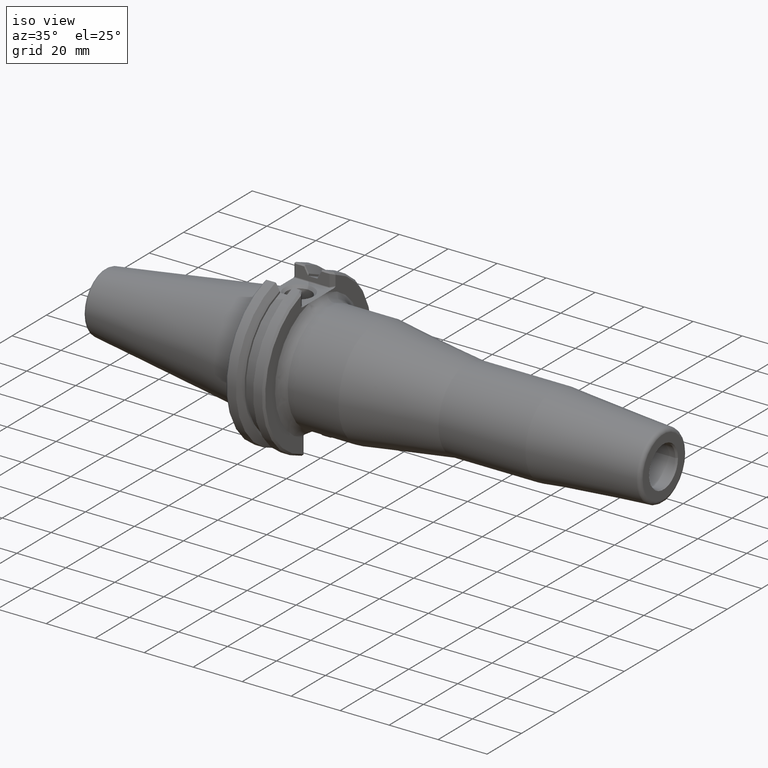
[diagram: clean part render]
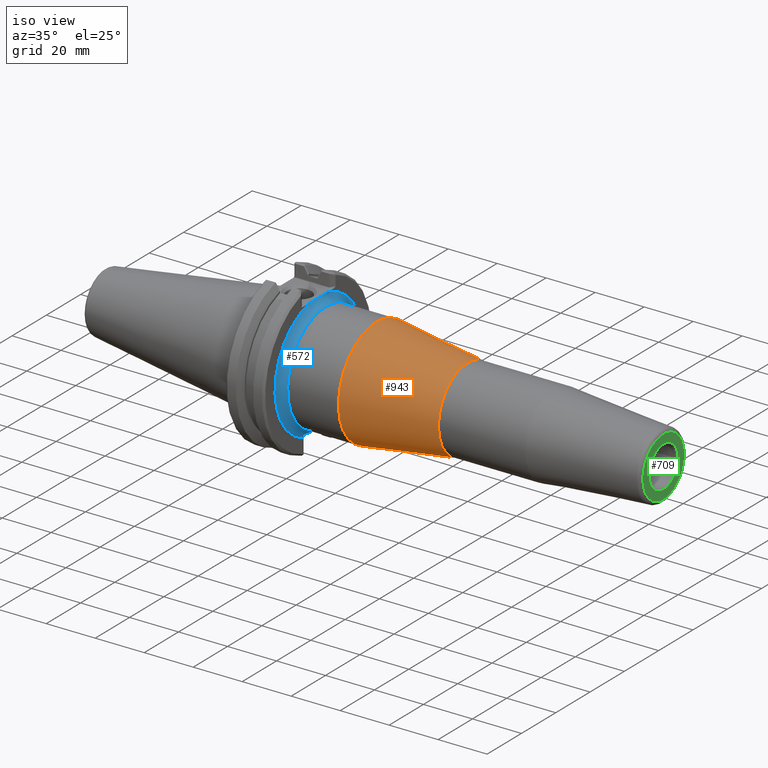
[diagram: same view with three faces highlighted in distinct colors, each labeled with its STEP entity id]
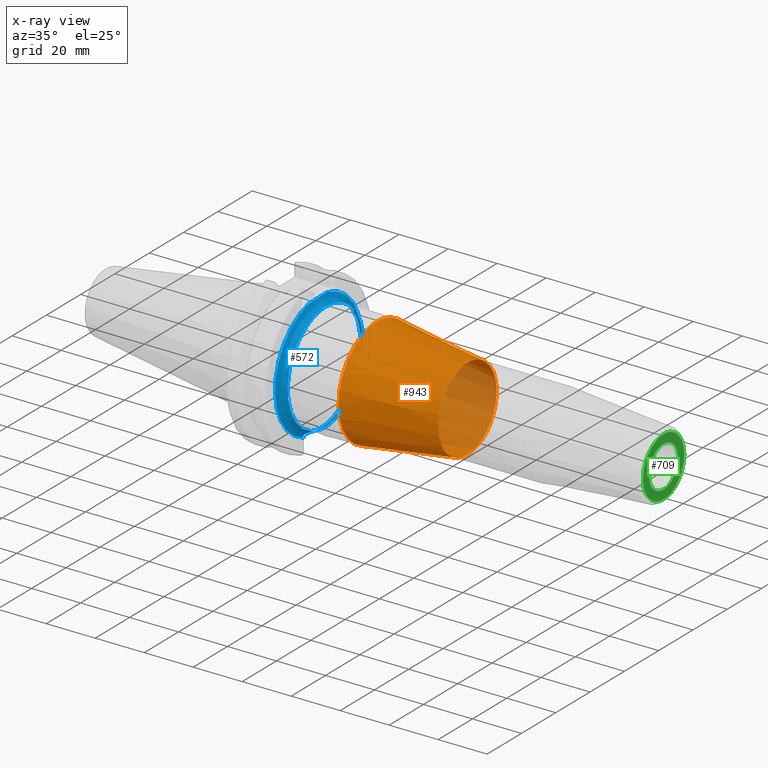
[diagram: x-ray of the same camera — body ghosted, the three highlighted faces saturated]
A machine part, iso view with three faces highlighted in distinct colors.
The next image is the same camera in x-ray (body ghosted, the three faces saturated) — at least one of them is partly hidden behind the body in this view.
Their STEP definitions:

[orange] entity #943 — the highlighted conical surface has half-angle 8 deg.
#627=CARTESIAN_POINT('',(42.832193200542505,22.224999999999998,0.0));
#628=VERTEX_POINT('',#627);
#629=CARTESIAN_POINT('',(42.832193200542505,0.0,0.0));
#630=DIRECTION('',(1.0,0.0,0.0));
#631=DIRECTION('',(0.0,1.0,0.0));
#632=AXIS2_PLACEMENT_3D('',#629,#630,#631);
#633=CIRCLE('',#632,22.224999999999998);
#634=EDGE_CURVE('',#628,#628,#633,.T.);
#920=CARTESIAN_POINT('',(80.009999999999977,17.000000000000007,0.0));
#921=VERTEX_POINT('',#920);
#922=CARTESIAN_POINT('',(80.009999999999977,0.0,0.0));
#923=DIRECTION('',(1.0,0.0,0.0));
#924=DIRECTION('',(0.0,1.0,0.0));
#925=AXIS2_PLACEMENT_3D('',#922,#923,#924);
#926=CIRCLE('',#925,17.000000000000007);
#927=EDGE_CURVE('',#921,#921,#926,.T.);
#932=CARTESIAN_POINT('',(61.421096600271241,0.0,0.0));
#933=DIRECTION('',(-1.0,0.0,0.0));
#934=DIRECTION('',(0.0,1.0,0.0));
#935=AXIS2_PLACEMENT_3D('',#932,#933,#934);
#936=CONICAL_SURFACE('',#935,19.612500000000001,7.999999999999992);
#937=ORIENTED_EDGE('',*,*,#927,.F.);
#938=EDGE_LOOP('',(#937));
#939=FACE_OUTER_BOUND('',#938,.T.);
#940=ORIENTED_EDGE('',*,*,#634,.T.);
#941=EDGE_LOOP('',(#940));
#942=FACE_BOUND('',#941,.T.);
#943=ADVANCED_FACE('',(#939,#942),#936,.T.);

[blue] entity #572 — the highlighted face is a freeform B-spline surface patch.
#357=CARTESIAN_POINT('',(22.098000000000006,-2.721688E-015,22.225000000000001));
#358=CARTESIAN_POINT('',(19.050000000000004,-2.721688E-015,22.225000000000001));
#359=CARTESIAN_POINT('',(19.050000000000004,-3.094948E-015,25.273000000000003));
#360=CARTESIAN_POINT('',(19.050000000000004,-3.468208E-015,28.321000000000005));
#361=CARTESIAN_POINT('',(22.098000000000006,-3.468208E-015,28.321000000000005));
#362=CARTESIAN_POINT('',(22.098000000000006,-22.225000000000001,22.224999999999994));
#363=CARTESIAN_POINT('',(19.050000000000004,-22.225000000000001,22.224999999999994));
#364=CARTESIAN_POINT('',(19.050000000000004,-25.273000000000003,25.272999999999993));
#365=CARTESIAN_POINT('',(19.050000000000004,-28.321000000000002,28.320999999999994));
#366=CARTESIAN_POINT('',(22.098000000000006,-28.321000000000002,28.320999999999991));
#367=CARTESIAN_POINT('',(22.098000000000006,-22.225000000000001,-2.721688E-015));
#368=CARTESIAN_POINT('',(19.050000000000004,-22.225000000000001,-2.721688E-015));
#369=CARTESIAN_POINT('',(19.050000000000004,-25.273000000000003,-3.094948E-015));
#370=CARTESIAN_POINT('',(19.050000000000004,-28.321000000000005,-3.468208E-015));
#371=CARTESIAN_POINT('',(22.098000000000006,-28.321000000000005,-3.468208E-015));
#372=CARTESIAN_POINT('',(22.098000000000006,-22.224999999999994,-22.225000000000001));
#373=CARTESIAN_POINT('',(19.050000000000004,-22.224999999999994,-22.225000000000001));
#374=CARTESIAN_POINT('',(19.050000000000004,-25.272999999999993,-25.273000000000003));
#375=CARTESIAN_POINT('',(19.050000000000004,-28.320999999999994,-28.321000000000002));
#376=CARTESIAN_POINT('',(22.098000000000006,-28.320999999999991,-28.321000000000002));
#377=CARTESIAN_POINT('',(22.098000000000006,2.721688E-015,-22.225000000000001));
#378=CARTESIAN_POINT('',(19.050000000000004,2.721688E-015,-22.225000000000001));
#379=CARTESIAN_POINT('',(19.050000000000004,3.094948E-015,-25.273000000000003));
#380=CARTESIAN_POINT('',(19.050000000000004,3.468208E-015,-28.321000000000005));
#381=CARTESIAN_POINT('',(22.098000000000006,3.468208E-015,-28.321000000000005));
#382=CARTESIAN_POINT('',(22.098000000000006,22.225000000000001,-22.224999999999994));
#383=CARTESIAN_POINT('',(19.050000000000004,22.225000000000001,-22.224999999999994));
#384=CARTESIAN_POINT('',(19.050000000000004,25.273000000000003,-25.272999999999993));
#385=CARTESIAN_POINT('',(19.050000000000004,28.321000000000002,-28.320999999999994));
#386=CARTESIAN_POINT('',(22.098000000000006,28.321000000000002,-28.320999999999991));
#387=CARTESIAN_POINT('',(22.098000000000006,22.225000000000001,2.721688E-015));
#388=CARTESIAN_POINT('',(19.050000000000004,22.225000000000001,2.721688E-015));
#389=CARTESIAN_POINT('',(19.050000000000004,25.273000000000003,3.094948E-015));
#390=CARTESIAN_POINT('',(19.050000000000004,28.321000000000005,3.468208E-015));
#391=CARTESIAN_POINT('',(22.098000000000006,28.321000000000005,3.468208E-015));
#392=CARTESIAN_POINT('',(22.098000000000006,22.224999999999994,22.225000000000001));
#393=CARTESIAN_POINT('',(19.050000000000004,22.224999999999994,22.225000000000001));
#394=CARTESIAN_POINT('',(19.050000000000004,25.272999999999993,25.273000000000003));
#395=CARTESIAN_POINT('',(19.050000000000004,28.320999999999994,28.321000000000002));
#396=CARTESIAN_POINT('',(22.098000000000006,28.320999999999991,28.321000000000002));
#397=CARTESIAN_POINT('',(22.098000000000006,-2.721688E-015,22.225000000000001));
#398=CARTESIAN_POINT('',(19.050000000000004,-2.721688E-015,22.225000000000001));
#399=CARTESIAN_POINT('',(19.050000000000004,-3.094948E-015,25.273000000000003));
#400=CARTESIAN_POINT('',(19.050000000000004,-3.468208E-015,28.321000000000005));
#401=CARTESIAN_POINT('',(22.098000000000006,-3.468208E-015,28.321000000000005));
#409=(BOUNDED_SURFACE()B_SPLINE_SURFACE(2,2,((#357,#362,#367,#372,#377,#382,#387,#392,#397),(#358,#363,#368,#373,#378,#383,#388,#393,#398),(#359,#364,#369,#374,#379,#384,#389,#394,#399),(#360,#365,#370,#375,#380,#385,#390,#395,#400),(#361,#366,#371,#376,#381,#386,#391,#396,#401)),.UNSPECIFIED.,.F.,.T.,.U.)B_SPLINE_SURFACE_WITH_KNOTS((3,2,3),(3,2,2,2,3),(-3.141592653589793,-1.570796326794897,0.0),(0.0,1.570796326794897,3.141592653589793,4.712388980384690,6.283185307179586),.UNSPECIFIED.)GEOMETRIC_REPRESENTATION_ITEM()RATIONAL_B_SPLINE_SURFACE(((1.0,0.707106781186548,1.0,0.707106781186548,1.0,0.707106781186548,1.0,0.707106781186548,1.0),(0.707106781186546,0.499999999999999,0.707106781186546,0.499999999999999,0.707106781186546,0.499999999999999,0.707106781186546,0.499999999999999,0.707106781186546),(1.0,0.707106781186548,1.0,0.707106781186548,1.0,0.707106781186548,1.0,0.707106781186548,1.0),(0.707106781186546,0.499999999999999,0.707106781186546,0.499999999999999,0.707106781186546,0.499999999999999,0.707106781186546,0.499999999999999,0.707106781186546),(1.0,0.707106781186548,1.0,0.707106781186548,1.0,0.707106781186548,1.0,0.707106781186548,1.0)))REPRESENTATION_ITEM('')SURFACE());
#410=CARTESIAN_POINT('',(19.325102362057475,8.223491266684036,-22.555200000000006));
#411=VERTEX_POINT('',#410);
#412=CARTESIAN_POINT('',(19.325102361839747,-8.223491268076849,-22.555200000000006));
#413=VERTEX_POINT('',#412);
#414=CARTESIAN_POINT('',(19.325102361839747,-8.223491268076851,-22.555200000000006));
#415=CARTESIAN_POINT('',(19.379001482295582,-7.878692955160883,-22.555200000000006));
#416=CARTESIAN_POINT('',(19.437705024760749,-7.542506030813278,-22.555200000000006));
#417=CARTESIAN_POINT('',(19.497346476870025,-7.222550791006899,-22.555200000000006));
#418=CARTESIAN_POINT('',(19.536138572988879,-7.014444952242968,-22.555200000000006));
#419=CARTESIAN_POINT('',(19.577047895266325,-6.803954918850010,-22.555200000000006));
#420=CARTESIAN_POINT('',(19.619981473683076,-6.590207144475252,-22.555200000000006));
#421=CARTESIAN_POINT('',(19.806119276295608,-5.663507286167733,-22.555200000000006));
#422=CARTESIAN_POINT('',(20.032448633461239,-4.685987690118757,-22.555200000000006));
#423=CARTESIAN_POINT('',(20.238818001424637,-3.706307989632887,-22.555200000000006));
#424=CARTESIAN_POINT('',(20.453330926020758,-2.687969077261217,-22.555200000000006));
#425=CARTESIAN_POINT('',(20.640128355569239,-1.665352639392729,-22.555200000000006));
#426=CARTESIAN_POINT('',(20.697735468046087,-0.687764278621622,-22.555200000000006));
#427=CARTESIAN_POINT('',(20.723892729547348,-0.243877520653042,-22.555200000000006));
#428=CARTESIAN_POINT('',(20.725042450655298,0.183714360963320,-22.555200000000006));
#429=CARTESIAN_POINT('',(20.701179333246525,0.626705083078030,-22.555200000000006));
#430=CARTESIAN_POINT('',(20.651071860589227,1.556891408509224,-22.555200000000006));
#431=CARTESIAN_POINT('',(20.482529105537605,2.529215411539177,-22.555200000000006));
#432=CARTESIAN_POINT('',(20.281807517948565,3.500354831027343,-22.555200000000006));
#433=CARTESIAN_POINT('',(20.114177290537864,4.311390274158654,-22.555200000000006));
#434=CARTESIAN_POINT('',(19.927747758898789,5.122786234167348,-22.555200000000006));
#435=CARTESIAN_POINT('',(19.761143624720098,5.907967818462163,-22.555200000000006));
#436=CARTESIAN_POINT('',(19.681524817916262,6.283199928842135,-22.555200000000006));
#437=CARTESIAN_POINT('',(19.606065602353091,6.652353723378807,-22.555200000000006));
#438=CARTESIAN_POINT('',(19.537125571272703,7.012129892883925,-22.555200000000006));
#439=CARTESIAN_POINT('',(19.497413355767897,7.219375357572236,-22.555200000000006));
#440=CARTESIAN_POINT('',(19.459655630968346,7.424102693183777,-22.555200000000006));
#441=CARTESIAN_POINT('',(19.422292097612729,7.637635979678694,-22.555200000000006));
#442=CARTESIAN_POINT('',(19.388791635498485,7.829091742340872,-22.555200000000006));
#443=CARTESIAN_POINT('',(19.356152073684470,8.024863012796082,-22.555200000000006));
#444=CARTESIAN_POINT('',(19.325102362057475,8.223491266684038,-22.555200000000006));
#445=B_SPLINE_CURVE_WITH_KNOTS('',3,(#414,#415,#416,#417,#418,#419,#420,#421,#422,#423,#424,#425,#426,#427,#428,#429,#430,#431,#432,#433,#434,#435,#436,#437,#438,#439,#440,#441,#442,#443,#444),.UNSPECIFIED.,.F.,.U.,(4,3,3,3,3,3,3,3,3,3,4),(6.238622313871780,6.336104615721475,6.399509222576316,6.674398822527928,6.960135860968325,7.089878493669891,7.362310435784444,7.589828706036981,7.698557899900505,7.761190264735640,7.817346976289517),.UNSPECIFIED.);
#446=EDGE_CURVE('',#411,#413,#445,.F.);
#447=ORIENTED_EDGE('',*,*,#446,.F.);
#448=CARTESIAN_POINT('',(19.103413360181769,8.855514653646434,-23.063199999943876));
#449=VERTEX_POINT('',#448);
#450=CARTESIAN_POINT('',(19.325102362057471,8.223491266684036,-22.555200000000010));
#451=CARTESIAN_POINT('',(19.317871080649333,8.269750530566746,-22.555199999951110));
#452=CARTESIAN_POINT('',(19.309655150456372,8.315999880719728,-22.557742863518069));
#453=CARTESIAN_POINT('',(19.278582680528690,8.471602629189381,-22.576682937828558));
#454=CARTESIAN_POINT('',(19.253425591885282,8.568487397061013,-22.606377261088483));
#455=CARTESIAN_POINT('',(19.209757579779524,8.708245084175623,-22.683464415623821));
#456=CARTESIAN_POINT('',(19.191275541441289,8.757906399973667,-22.724646753540885));
#457=CARTESIAN_POINT('',(19.161386449045239,8.823076404268432,-22.808172996974463));
#458=CARTESIAN_POINT('',(19.148813269233255,8.844956611835372,-22.849473863004750));
#459=CARTESIAN_POINT('',(19.127139718713781,8.867773713431905,-22.935651160045300));
#460=CARTESIAN_POINT('',(19.118236887104757,8.870401148564811,-22.977774526268885));
#461=CARTESIAN_POINT('',(19.108021676709214,8.862335066151966,-23.034957866567627));
#462=CARTESIAN_POINT('',(19.105635823378684,8.859364072818341,-23.049173260436632));
#463=CARTESIAN_POINT('',(19.103413360181769,8.855514653646434,-23.063199999943876));
#464=B_SPLINE_CURVE_WITH_KNOTS('',3,(#450,#451,#452,#453,#454,#455,#456,#457,#458,#459,#460,#461,#462,#463),.UNSPECIFIED.,.F.,.U.,(4,2,2,2,2,2,4),(0.041005570258135,0.054553789982660,0.087084030452500,0.111886716617660,0.130947688388064,0.147730619360367,0.153363528154201),.UNSPECIFIED.);
#465=EDGE_CURVE('',#411,#449,#464,.T.);
#466=ORIENTED_EDGE('',*,*,#465,.T.);
#467=CARTESIAN_POINT('',(19.050000000000004,8.763000000008642,-23.705154713687246));
#468=VERTEX_POINT('',#467);
#469=CARTESIAN_POINT('',(19.103413360182053,8.855514653646933,-23.063199999942068));
#470=CARTESIAN_POINT('',(19.072676447958337,8.802276760007670,-23.257191361262858));
#471=CARTESIAN_POINT('',(19.052682226414504,8.767645752435961,-23.468747895778119));
#472=CARTESIAN_POINT('',(19.050275158042300,8.763476587718012,-23.661309937458661));
#473=CARTESIAN_POINT('',(19.050093017815559,8.763161111591193,-23.675880896197757));
#474=CARTESIAN_POINT('',(19.050000000000004,8.763000000008645,-23.690488912837662));
#475=CARTESIAN_POINT('',(19.050000000000004,8.763000000008645,-23.705154713687246));
#476=B_SPLINE_CURVE_WITH_KNOTS('',3,(#469,#470,#471,#472,#473,#474,#475),.UNSPECIFIED.,.F.,.U.,(4,3,4),(-0.736108356900545,-0.679207192184493,-0.674901543386587),.UNSPECIFIED.);
#477=EDGE_CURVE('',#468,#449,#476,.F.);
#478=ORIENTED_EDGE('',*,*,#477,.F.);
#479=CARTESIAN_POINT('',(19.050000000000004,5.402562684504498,24.688799999999993));
#480=VERTEX_POINT('',#479);
#481=CARTESIAN_POINT('',(19.050000000000004,0.0,0.0));
#482=DIRECTION('',(1.0,0.0,0.0));
#483=DIRECTION('',(0.0,-1.0,0.0));
#484=AXIS2_PLACEMENT_3D('',#481,#482,#483);
#485=CIRCLE('',#484,25.273000000000003);
#486=EDGE_CURVE('',#468,#480,#485,.T.);
#487=ORIENTED_EDGE('',*,*,#486,.T.);
#488=CARTESIAN_POINT('',(19.050000000000004,-5.402562684504498,24.688799999999993));
#489=VERTEX_POINT('',#488);
#490=CARTESIAN_POINT('',(19.050000000000004,5.402562684504498,24.688799999999993));
#491=CARTESIAN_POINT('',(19.050000000000004,5.383468711271515,24.688799999999993));
#492=CARTESIAN_POINT('',(19.050008016180790,5.364670221105220,24.688799999999993));
#493=CARTESIAN_POINT('',(19.050024145308559,5.345521375304905,24.688799999999993));
#494=CARTESIAN_POINT('',(19.050380813093376,4.922077745173089,24.688799999999993));
#495=CARTESIAN_POINT('',(19.055301162209282,4.434330201140024,24.688799999999993));
#496=CARTESIAN_POINT('',(19.061328638782147,3.998237449612195,24.688799999999993));
#497=CARTESIAN_POINT('',(19.063686312969995,3.827657836177733,24.688799999999993));
#498=CARTESIAN_POINT('',(19.066107310674042,3.667507714654955,24.688799999999993));
#499=CARTESIAN_POINT('',(19.068737014277765,3.499287180539350,24.688799999999993));
#500=CARTESIAN_POINT('',(19.085269540900832,2.441711545447185,24.688799999999993));
#501=CARTESIAN_POINT('',(19.104801828442643,1.236243264337343,24.688799999999993));
#502=CARTESIAN_POINT('',(19.106367928821307,0.189377434072701,24.688799999999993));
#503=CARTESIAN_POINT('',(19.106463278453251,0.125640605340913,24.688799999999993));
#504=CARTESIAN_POINT('',(19.106509675763604,0.062491773325476,24.688799999999993));
#505=CARTESIAN_POINT('',(19.106509675763604,1.387779E-016,24.688799999999993));
#506=CARTESIAN_POINT('',(19.106509675763604,-1.024486192835338,24.688799999999993));
#507=CARTESIAN_POINT('',(19.089042662835542,-2.225578175756351,24.688799999999993));
#508=CARTESIAN_POINT('',(19.071913131592947,-3.298483909167814,24.688799999999993));
#509=CARTESIAN_POINT('',(19.069273706202413,-3.463803940072831,24.688799999999993));
#510=CARTESIAN_POINT('',(19.066730526274132,-3.626081850065961,24.688799999999993));
#511=CARTESIAN_POINT('',(19.064394036519808,-3.784203266134315,24.688799999999993));
#512=CARTESIAN_POINT('',(19.062364187389413,-3.921572847280130,24.688799999999993));
#513=CARTESIAN_POINT('',(19.060350408300362,-4.065005863419290,24.688799999999993));
#514=CARTESIAN_POINT('',(19.058491219464514,-4.212775752534056,24.688799999999993));
#515=CARTESIAN_POINT('',(19.054503033649432,-4.529760108453766,24.688799999999993));
#516=CARTESIAN_POINT('',(19.051384776908289,-4.863115934162072,24.688799999999993));
#517=CARTESIAN_POINT('',(19.050381639759202,-5.172240603531262,24.688799999999993));
#518=CARTESIAN_POINT('',(19.050126701476685,-5.250801857457457,24.688799999999993));
#519=CARTESIAN_POINT('',(19.050000000000004,-5.326963511867858,24.688799999999993));
#520=CARTESIAN_POINT('',(19.050000000000004,-5.402562684504501,24.688799999999993));
#521=B_SPLINE_CURVE_WITH_KNOTS('',3,(#490,#491,#492,#493,#494,#495,#496,#497,#498,#499,#500,#501,#502,#503,#504,#505,#506,#507,#508,#509,#510,#511,#512,#513,#514,#515,#516,#517,#518,#519,#520),.UNSPECIFIED.,.F.,.U.,(4,3,3,3,3,3,3,3,3,3,4),(5.175172533235751,5.180835069389998,5.306052269941444,5.355031533161434,5.662956339598139,5.681703871595782,5.989049729446384,6.036407502954436,6.077550048174162,6.165805803629484,6.188235209955812),.UNSPECIFIED.);
#522=EDGE_CURVE('',#489,#480,#521,.F.);
#523=ORIENTED_EDGE('',*,*,#522,.F.);
#524=CARTESIAN_POINT('',(19.050000000000004,-8.762999999991365,-23.705154713693631));
#525=VERTEX_POINT('',#524);
#526=CARTESIAN_POINT('',(19.050000000000004,0.0,0.0));
#527=DIRECTION('',(1.0,0.0,0.0));
#528=DIRECTION('',(0.0,-1.0,0.0));
#529=AXIS2_PLACEMENT_3D('',#526,#527,#528);
#530=CIRCLE('',#529,25.273000000000003);
#531=EDGE_CURVE('',#489,#525,#530,.T.);
#532=ORIENTED_EDGE('',*,*,#531,.T.);
#533=CARTESIAN_POINT('',(19.103413352728815,-8.855514640720264,-23.063200046988698));
#534=VERTEX_POINT('',#533);
#535=CARTESIAN_POINT('',(19.050000000000004,-8.762999999991369,-23.705154713693631));
#536=CARTESIAN_POINT('',(19.050000000000004,-8.762999999991369,-23.501132017296829));
#537=CARTESIAN_POINT('',(19.070337920829296,-8.798226312188010,-23.271950633906371));
#538=CARTESIAN_POINT('',(19.103413352729103,-8.855514640720763,-23.063200046986889));
#539=B_SPLINE_CURVE_WITH_KNOTS('',3,(#535,#536,#537,#538),.UNSPECIFIED.,.F.,.U.,(4,4),(0.674901543386552,0.736108352305593),.UNSPECIFIED.);
#540=EDGE_CURVE('',#534,#525,#539,.F.);
#541=ORIENTED_EDGE('',*,*,#540,.F.);
#542=CARTESIAN_POINT('',(19.103413352728740,-8.855514640720134,-23.063200046989174));
#543=CARTESIAN_POINT('',(19.104494081260789,-8.857386518708669,-23.056379191797465));
#544=CARTESIAN_POINT('',(19.105615532126055,-8.859054240499017,-23.049500669647841));
#545=CARTESIAN_POINT('',(19.113612390912465,-8.869035219719558,-23.001898062792861));
#546=CARTESIAN_POINT('',(19.121655920047850,-8.869842965508862,-22.961040703209076));
#547=CARTESIAN_POINT('',(19.140566663270420,-8.855574434224298,-22.880398477202732));
#548=CARTESIAN_POINT('',(19.151057147377880,-8.840600647560995,-22.842454223661335));
#549=CARTESIAN_POINT('',(19.176074751751916,-8.793383540017066,-22.764600830705653));
#550=CARTESIAN_POINT('',(19.190580083980887,-8.758516305887357,-22.727671328646636));
#551=CARTESIAN_POINT('',(19.224118657235866,-8.665411796484385,-22.655054760616515));
#552=CARTESIAN_POINT('',(19.244497876675062,-8.598998113492037,-22.621121642550477));
#553=CARTESIAN_POINT('',(19.286847399148826,-8.433210888070700,-22.569399075800650));
#554=CARTESIAN_POINT('',(19.308046429567330,-8.332599851334772,-22.555200000006447));
#555=CARTESIAN_POINT('',(19.325102361840056,-8.223491268074877,-22.555200000000010));
#556=B_SPLINE_CURVE_WITH_KNOTS('',3,(#542,#543,#544,#545,#546,#547,#548,#549,#550,#551,#552,#553,#554,#555),.UNSPECIFIED.,.F.,.U.,(4,2,2,2,2,2,4),(0.406894132489417,0.409799204245180,0.426839847303348,0.444128832168591,0.465706837101542,0.494949965536512,0.528288181291287),.UNSPECIFIED.);
#557=EDGE_CURVE('',#534,#413,#556,.T.);
#558=ORIENTED_EDGE('',*,*,#557,.T.);
#559=EDGE_LOOP('',(#447,#466,#478,#487,#523,#532,#541,#558));
#560=FACE_OUTER_BOUND('',#559,.T.);
#561=CARTESIAN_POINT('',(22.098000000000006,22.225000000000001,-5.443375E-015));
#562=VERTEX_POINT('',#561);
#563=CARTESIAN_POINT('',(22.098000000000006,0.0,0.0));
#564=DIRECTION('',(-1.0,0.0,0.0));
#565=DIRECTION('',(0.0,-1.0,0.0));
#566=AXIS2_PLACEMENT_3D('',#563,#564,#565);
#567=CIRCLE('',#566,22.225000000000001);
#568=EDGE_CURVE('',#562,#562,#567,.T.);
#569=ORIENTED_EDGE('',*,*,#568,.T.);
#570=EDGE_LOOP('',(#569));
#571=FACE_BOUND('',#570,.T.);
#572=ADVANCED_FACE('',(#560,#571),#409,.T.);

[green] entity #709 — the highlighted planar face has unit normal (1, 0, 0).
#658=CARTESIAN_POINT('',(160.009999999999990,12.091228890712898,-2.961399E-015));
#659=VERTEX_POINT('',#658);
#660=CARTESIAN_POINT('',(160.009999999999990,0.0,0.0));
#661=DIRECTION('',(-1.0,0.0,0.0));
#662=DIRECTION('',(0.0,-1.0,0.0));
#663=AXIS2_PLACEMENT_3D('',#660,#661,#662);
#664=CIRCLE('',#663,12.091228890712898);
#665=EDGE_CURVE('',#659,#659,#664,.T.);
#690=CARTESIAN_POINT('',(160.009999999999990,6.750000000000003,0.0));
#691=DIRECTION('',(1.0,0.0,0.0));
#692=DIRECTION('',(0.0,0.0,-1.0));
#693=AXIS2_PLACEMENT_3D('',#690,#691,#692);
#694=PLANE('',#693);
#695=ORIENTED_EDGE('',*,*,#665,.F.);
#696=EDGE_LOOP('',(#695));
#697=FACE_OUTER_BOUND('',#696,.T.);
#698=CARTESIAN_POINT('',(160.009999999999990,8.424700905122503,0.0));
#699=VERTEX_POINT('',#698);
#700=CARTESIAN_POINT('',(160.009999999999990,0.0,0.0));
#701=DIRECTION('',(-1.0,0.0,0.0));
#702=DIRECTION('',(0.0,1.0,0.0));
#703=AXIS2_PLACEMENT_3D('',#700,#701,#702);
#704=CIRCLE('',#703,8.424700905122503);
#705=EDGE_CURVE('',#699,#699,#704,.T.);
#706=ORIENTED_EDGE('',*,*,#705,.T.);
#707=EDGE_LOOP('',(#706));
#708=FACE_BOUND('',#707,.T.);
#709=ADVANCED_FACE('',(#697,#708),#694,.T.);